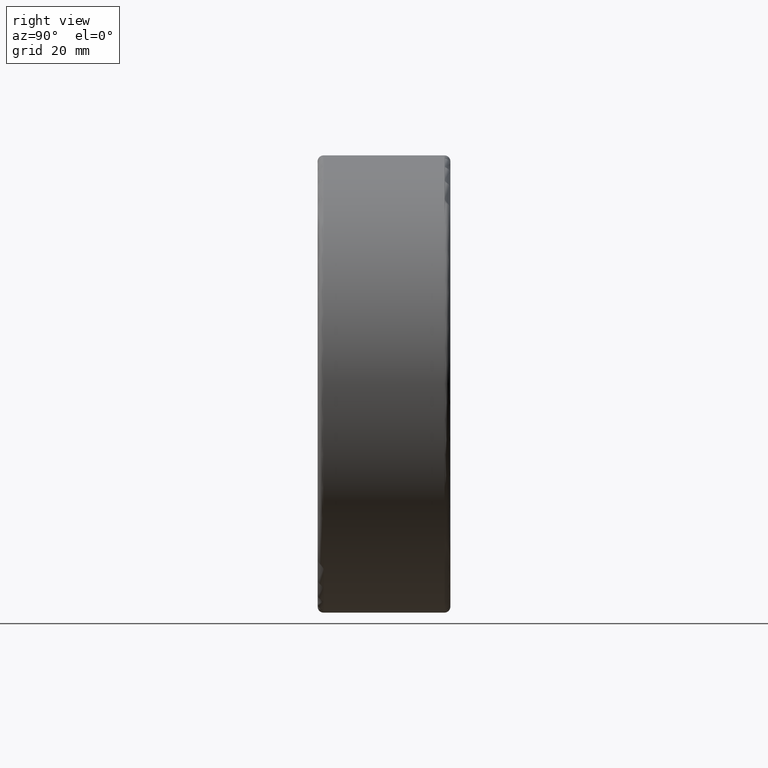
[diagram: clean part render]
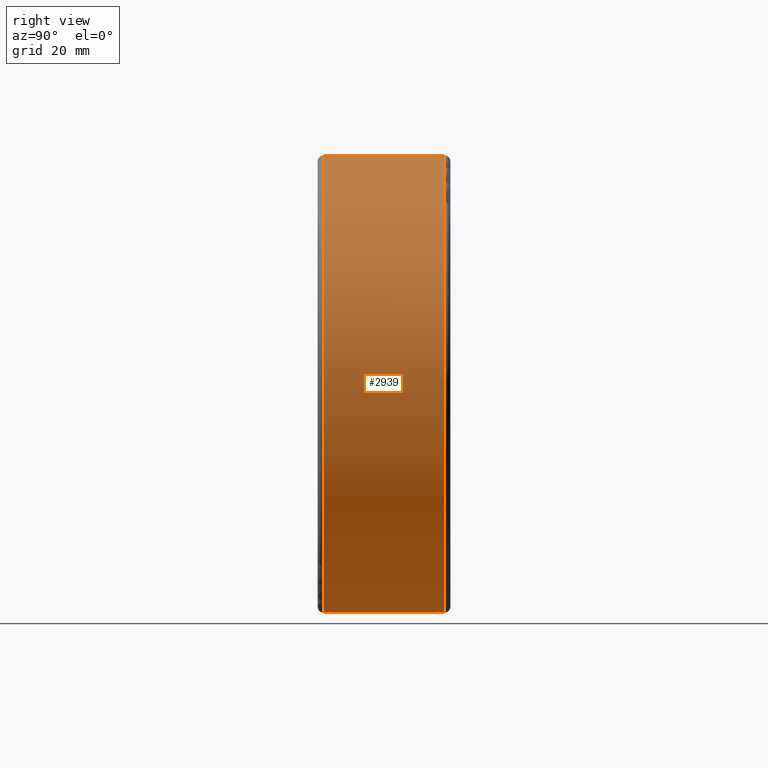
[diagram: same view with one face highlighted and labeled with its STEP entity id]
A machine part, right view. The second image highlights one B-rep face of the part: STEP entity #2939.
In plain terms, the highlighted cylindrical surface (bore or boss wall) has radius 77.5 mm, axis along (0, 1, 0).
Its self-contained STEP definition (entity closure, byte-faithful):
#115=FACE_BOUND('',#464,.T.);
#307=FACE_OUTER_BOUND('',#463,.T.);
#463=EDGE_LOOP('',(#2295,#2296,#2297,#2298,#2299,#2300));
#464=EDGE_LOOP('',(#2301,#2302,#2303,#2304));
#658=LINE('',#4914,#851);
#659=LINE('',#4917,#852);
#660=LINE('',#4921,#853);
#851=VECTOR('',#3945,77.5);
#852=VECTOR('',#3946,1000.);
#853=VECTOR('',#3949,1000.);
#1014=CIRCLE('',#3065,77.5);
#1015=CIRCLE('',#3066,77.5);
#1019=CIRCLE('',#3071,77.5);
#1020=CIRCLE('',#3072,77.5);
#1201=CIRCLE('',#3305,77.5);
#1202=CIRCLE('',#3306,77.5);
#1211=VERTEX_POINT('',#4318);
#1212=VERTEX_POINT('',#4319);
#1215=VERTEX_POINT('',#4328);
#1216=VERTEX_POINT('',#4329);
#1387=VERTEX_POINT('',#4915);
#1388=VERTEX_POINT('',#4916);
#1389=VERTEX_POINT('',#4918);
#1390=VERTEX_POINT('',#4920);
#1533=EDGE_CURVE('',#1211,#1212,#1014,.T.);
#1534=EDGE_CURVE('',#1212,#1211,#1015,.T.);
#1538=EDGE_CURVE('',#1215,#1216,#1019,.T.);
#1539=EDGE_CURVE('',#1216,#1215,#1020,.T.);
#1762=EDGE_CURVE('',#1211,#1216,#658,.T.);
#1763=EDGE_CURVE('',#1387,#1388,#659,.T.);
#1764=EDGE_CURVE('',#1387,#1389,#1201,.T.);
#1765=EDGE_CURVE('',#1389,#1390,#660,.T.);
#1766=EDGE_CURVE('',#1388,#1390,#1202,.T.);
#2295=ORIENTED_EDGE('',*,*,#1533,.T.);
#2296=ORIENTED_EDGE('',*,*,#1534,.T.);
#2297=ORIENTED_EDGE('',*,*,#1762,.T.);
#2298=ORIENTED_EDGE('',*,*,#1539,.T.);
#2299=ORIENTED_EDGE('',*,*,#1538,.T.);
#2300=ORIENTED_EDGE('',*,*,#1762,.F.);
#2301=ORIENTED_EDGE('',*,*,#1763,.F.);
#2302=ORIENTED_EDGE('',*,*,#1764,.T.);
#2303=ORIENTED_EDGE('',*,*,#1765,.T.);
#2304=ORIENTED_EDGE('',*,*,#1766,.F.);
#2883=CYLINDRICAL_SURFACE('',#3304,77.5);
#2939=ADVANCED_FACE('',(#307,#115),#2883,.T.);
#3065=AXIS2_PLACEMENT_3D('',#4320,#3429,#3430);
#3066=AXIS2_PLACEMENT_3D('',#4321,#3431,#3432);
#3071=AXIS2_PLACEMENT_3D('',#4330,#3441,#3442);
#3072=AXIS2_PLACEMENT_3D('',#4331,#3443,#3444);
#3304=AXIS2_PLACEMENT_3D('',#4913,#3943,#3944);
#3305=AXIS2_PLACEMENT_3D('',#4919,#3947,#3948);
#3306=AXIS2_PLACEMENT_3D('',#4922,#3950,#3951);
#3429=DIRECTION('center_axis',(0.,-1.,0.));
#3430=DIRECTION('ref_axis',(0.,0.,-1.));
#3431=DIRECTION('center_axis',(0.,-1.,0.));
#3432=DIRECTION('ref_axis',(0.,0.,-1.));
#3441=DIRECTION('center_axis',(0.,1.,0.));
#3442=DIRECTION('ref_axis',(0.,0.,1.));
#3443=DIRECTION('center_axis',(0.,1.,0.));
#3444=DIRECTION('ref_axis',(0.,0.,1.));
#3943=DIRECTION('center_axis',(0.,1.,0.));
#3944=DIRECTION('ref_axis',(0.,0.,1.));
#3945=DIRECTION('',(0.,-1.,0.));
#3946=DIRECTION('',(0.,-1.,0.));
#3947=DIRECTION('center_axis',(0.,1.,0.));
#3948=DIRECTION('ref_axis',(0.,0.,1.));
#3949=DIRECTION('',(0.,-1.,0.));
#3950=DIRECTION('center_axis',(0.,1.,0.));
#3951=DIRECTION('ref_axis',(0.,0.,1.));
#4318=CARTESIAN_POINT('',(9.49101269339198E-15,20.5,-77.5));
#4319=CARTESIAN_POINT('',(-9.49101269339198E-15,20.5,77.5));
#4320=CARTESIAN_POINT('Origin',(0.,20.5,0.));
#4321=CARTESIAN_POINT('Origin',(0.,20.5,0.));
#4328=CARTESIAN_POINT('',(0.,-20.4999999999999,77.5));
#4329=CARTESIAN_POINT('',(-9.49101269339198E-15,-20.4999999999999,-77.5));
#4330=CARTESIAN_POINT('Origin',(0.,-20.4999999999999,0.));
#4331=CARTESIAN_POINT('Origin',(0.,-20.4999999999999,0.));
#4913=CARTESIAN_POINT('Origin',(0.,32.1739912014965,0.));
#4914=CARTESIAN_POINT('',(-9.49101269339198E-15,32.1739912014965,-77.5));
#4915=CARTESIAN_POINT('',(-75.8304028737814,16.,-16.));
#4916=CARTESIAN_POINT('',(-75.8304028737814,-16.,-16.));
#4917=CARTESIAN_POINT('',(-75.8304028737814,16.,-16.));
#4918=CARTESIAN_POINT('',(-75.8304028737814,16.,16.));
#4919=CARTESIAN_POINT('Origin',(0.,16.,0.));
#4920=CARTESIAN_POINT('',(-75.8304028737814,-16.,16.));
#4921=CARTESIAN_POINT('',(-75.8304028737814,16.,16.));
#4922=CARTESIAN_POINT('Origin',(0.,-16.,0.));